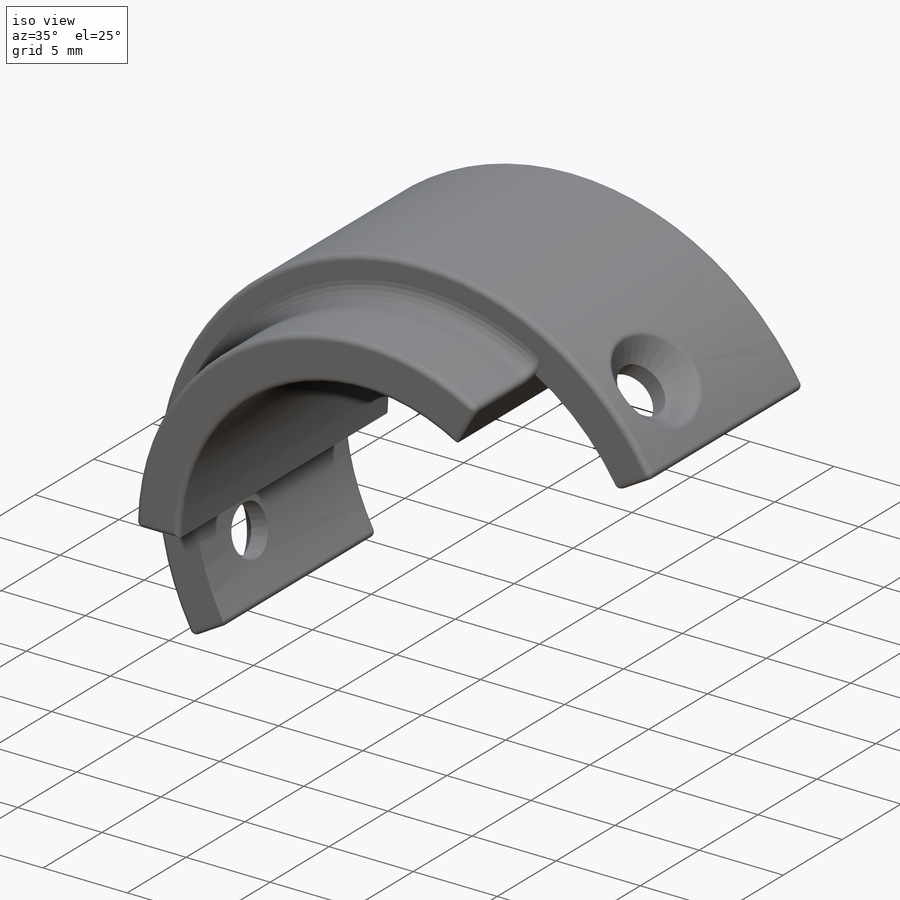
[diagram: iso view]
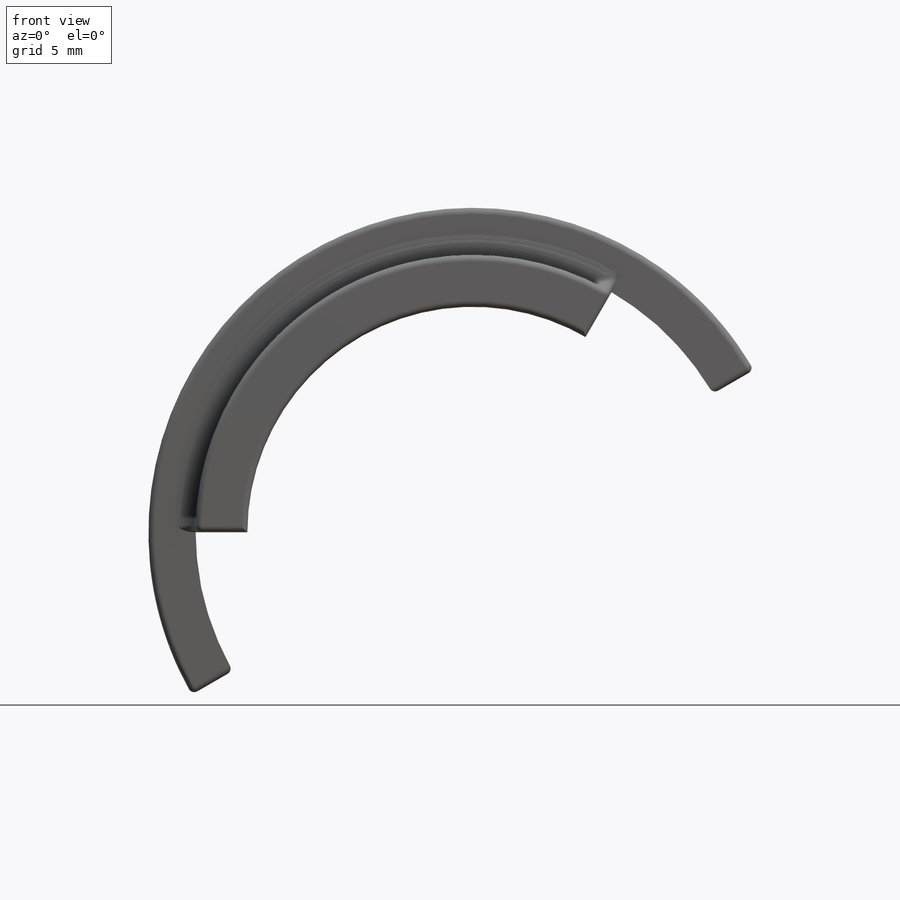
[diagram: front view]
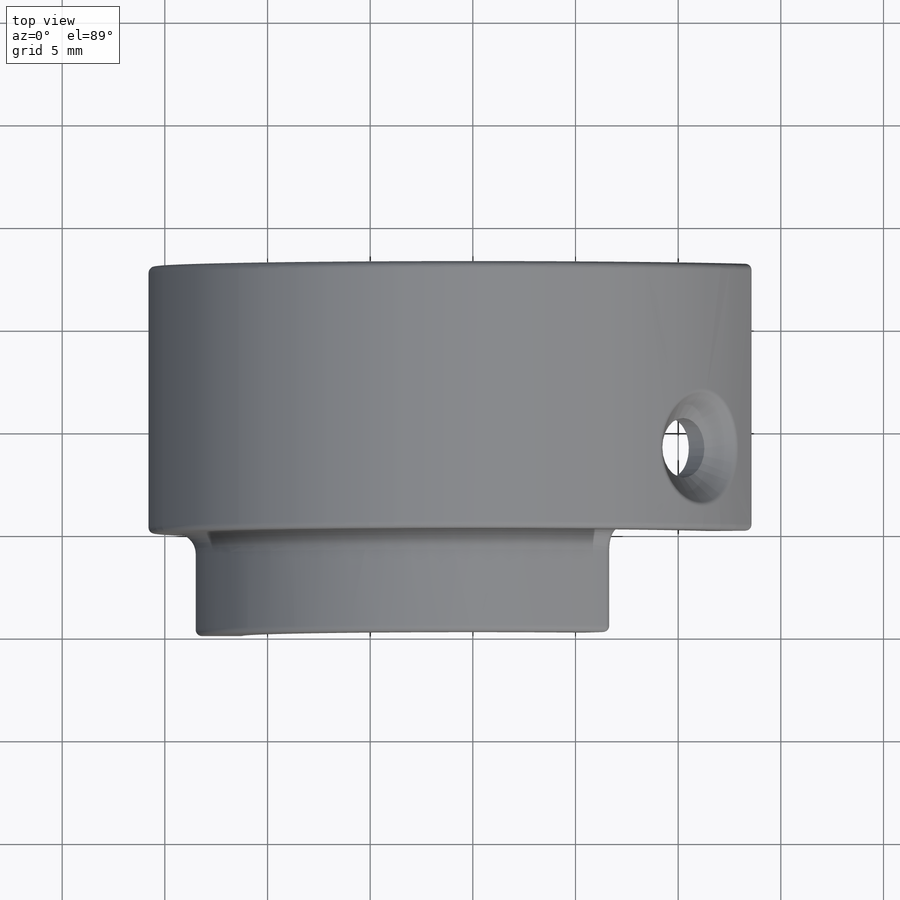
[diagram: top view]
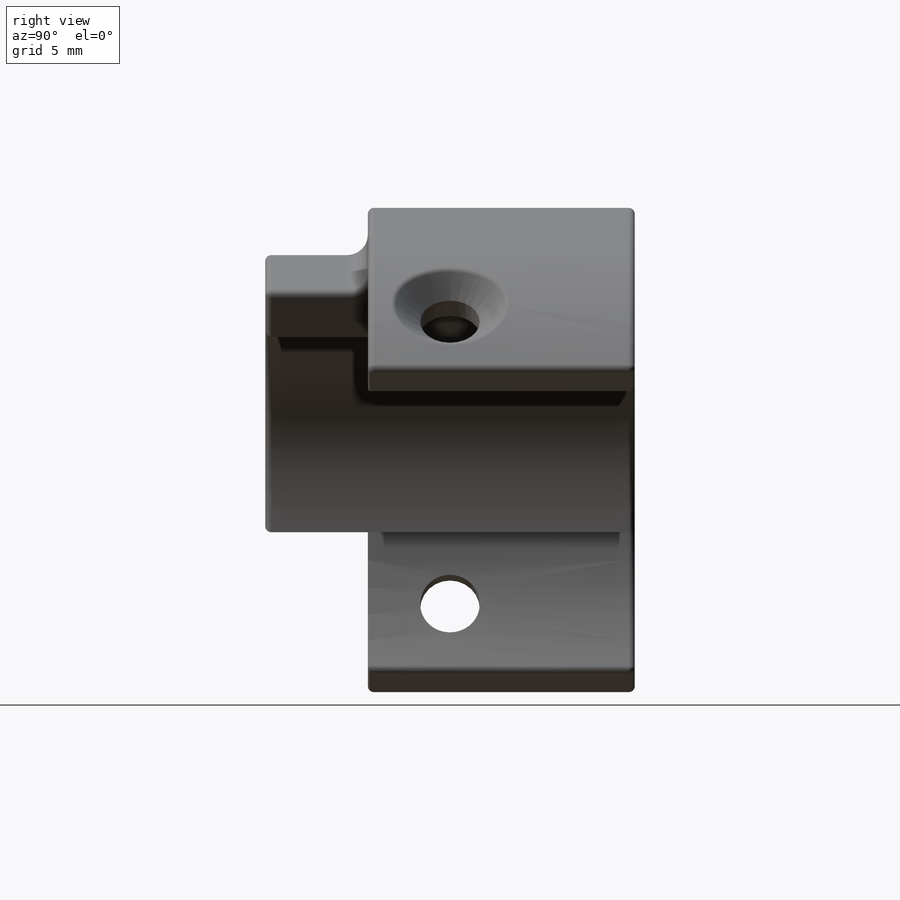
[diagram: right view]
SOLIDWORKS PART (.sldprt)
format: sldprt  version: not decoded by parser v0  size: 651,264 bytes
history: native  units: mm
features: sketch x13, cut_extrude x6, extrude x3, plane x2, hole x2, fillet x2, material x1 (+12 scaffold rows collapsed)
feature tree (41):
  scaffold x12  (default folders/planes/origin — collapsed)
  material  "ABS"
  sketch  "Esquisse1"  dims[c1.D4=14.2mm c1.D1=14.2mm c1.D3=12.975mm c2.D1=31.6mm c2.D2=25.96mm c3.D1=14.2mm c3.D2=14.2mm c3.D3=~10.040916mm c4.D3=45.0deg c4.D4=~2.001693mm]
  extrude  "Boss.-Extru.1"  Depth=2mm
  sketch  "Esquisse4"  dims[c1.D2=14.2mm c1.D3=14.2mm c1.D1=~14.208045mm c2.D3=14.2mm c2.D4=12.98mm c2.D5=3.0mm c2.D6=3.0mm c2.D7=3.0mm c2.D1=1.36mm c2.D2=1.36mm c3.D4=~0.968854mm c3.D7=~12.572466mm c3.D8=~23.675988mm c4.D8=~13.953182deg c4.D10=13.95deg c4.D1=~4.995034deg c4.D3=~6.453863deg c4.D4=~4.428171deg c4.D5=~7.732667deg c5.D1=0.0mm c5.D9=7.0]
  cut_extrude  "Enlèv. mat.-Extru.1"  Depth=2.5mm
  sketch  "Esquisse5"
  cut_extrude  "Enlèv. mat.-Extru.2"  [1 undecoded]
  sketch  "Esquisse6"  dims[D1=21.96mm D2=29.0mm]
  extrude  "Boss.-Extru.3"  Depth=18mm
  sketch  "Esquisse11"  dims[c1.D1=27.0mm c1.D2=21.96mm c2.D1=13.5mm c2.D3=13.5mm c3.D1=15.8mm c3.D2=~7.854273mm c4.D2=120.0deg c4.D3=5.49mm c4.D4=6.75mm c4.D5=4.82mm c5.D5=30.0deg c6.D5=4.82mm c6.D2=~1.991858mm c7.D2=30.0deg]
  extrude  "Boss.-Extru.5"  Depth=18mm
  plane  "Plan2"
  hole  "Fraisage pour vis à tête fraisée M2.52"  Diameter=2.9mm Depth=2.3mm
  sketch  "Esquisse15"  dims[c1.D1=9.0mm c1.D2=~3.494057mm c2.D1=9.0mm]
  sketch  "Esquisse16"  dims[hole-wizard template sketch: 54 standard entries collapsed; hole parameters kept: c17.Diamètre du perçage jusqu'au prochain=2.9mm c17.Profondeur du perçage jusqu'au prochain=2.3mm c17.Diamètre du fraisage entrant=5.5mm c17.D4=~3.666174mm c17.Angle du fraisage entrant=90.0deg]
  sketch  "Esquisse20"  dims[c1.D1=13.5mm c1.D2=~2.675638mm c2.D2=30.0deg c3.D2=2.52mm c4.D2=30.0deg c5.D2=~2.824325mm c6.D2=60.0deg c6.D3=~41.081346deg c7.D2=75.0deg c7.D3=30.0deg]
  cut_extrude  "Enlèv. mat.-Extru.4"  Depth=18mm
  sketch  "Esquisse23"  dims[c1.D2=2.3mm c2.D2=30.0deg c2.D1=0.0mm]
  cut_extrude  "Enlèv. mat.-Extru.5"  Depth=18mm
  plane  "Plan4"
  hole  "Fraisage pour vis à tête fraisée M2.51"  Diameter=2.9mm Depth=6.254473mm
  sketch  "Esquisse22"  dims[D1=9.0mm]
  sketch  "Esquisse21"  dims[hole-wizard template sketch: 39 standard entries collapsed; hole parameters kept: c13.Diamètre du perçage=2.9mm c13.Profondeur du perçage=~6.254473mm c13.Diamètre du fraisage entrant=5.5mm c13.D4=~33.297463mm c13.Angle du fraisage entrant=90.0deg c14.D5=~14.816244mm c14.Angle de pointe=118.0deg]
  sketch  "Esquisse19"
  cut_extrude  "Enlèv. mat.-Extru.3"  [1 undecoded]
  sketch  "Esquisse25"
  cut_extrude  "Enlèv. mat.-Extru.6"  Depth=5mm
  fillet  "Congé3"  Radius=1mm
  fillet  "Congé4"  Radius=0.3mm
decode coverage: 21 of 26 modeling features carry decoded parameters
note: ~ marks probable driven/reference dimensions
note: 2 parameter values undecoded
note: suppression state not decoded; provenance and decode notes live in map.json
